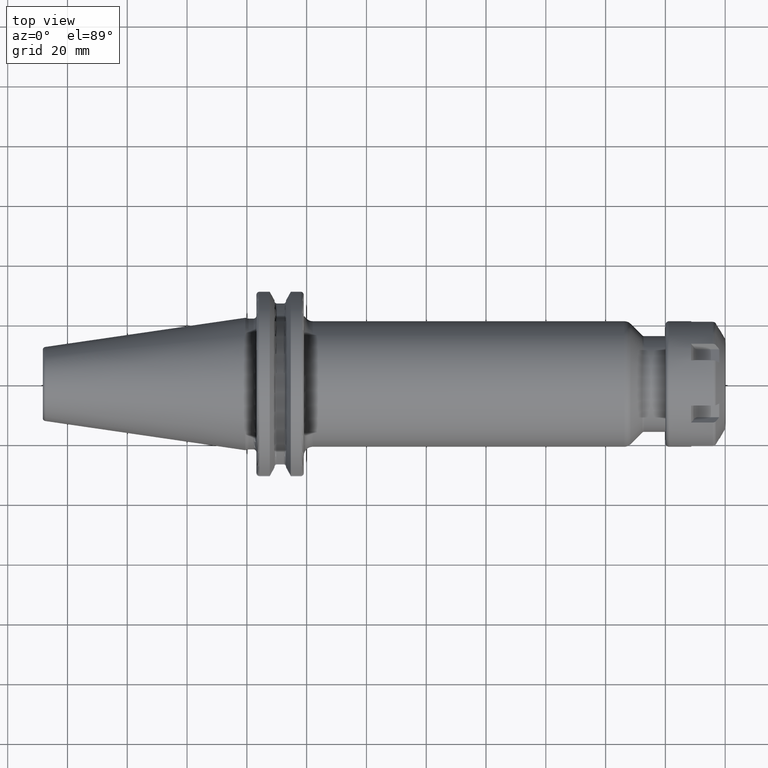
[diagram: clean part render]
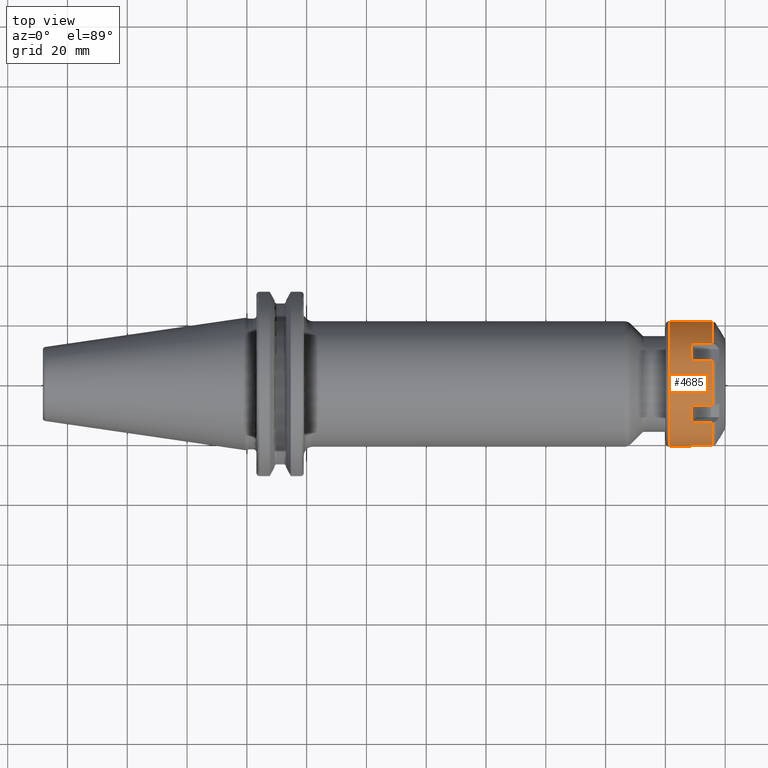
[diagram: same view with one face highlighted and labeled with its STEP entity id]
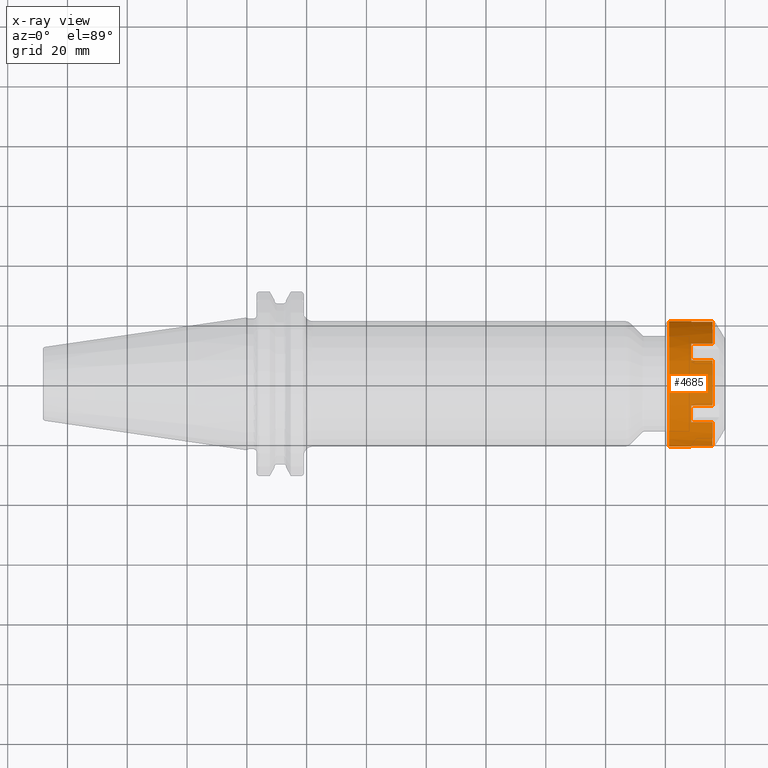
[diagram: x-ray of the same camera — body ghosted, the highlighted face saturated]
A machine part, top view. The second image highlights one B-rep face of the part: STEP entity #4685.
The next image is the same camera in x-ray: the body ghosted, the highlighted face saturated — about 0% of this face is hidden behind the body in this view.
In plain terms, the highlighted cylindrical surface (partial cylindrical patch) has radius 21 mm, axis along (1, 0, 0).
Its self-contained STEP definition (entity closure, byte-faithful):
#3319=CARTESIAN_POINT('',(1.581421054838E1,1.317189611779E1,1.635546247167E1));
#3336=CARTESIAN_POINT('',(1.581421054838E1,2.075019405E1,3.229465418179E0));
#3338=CARTESIAN_POINT('',(1.581421054838E1,-7.578297932215E0,1.958492788985E1));
#3358=CARTESIAN_POINT('',(1.581421054838E1,7.578297932215E0,1.958492788985E1));
#3360=CARTESIAN_POINT('',(1.581421054838E1,-2.075019405E1,3.229465418179E0));
#3380=CARTESIAN_POINT('',(1.581421054838E1,-1.317189611779E1,1.635546247167E1));
#3453=DIRECTION('',(9.999999999998E-1,-6.709444935676E-7,-9.098410445458E-8));
#3454=VECTOR('',#3453,7.214212575504E0);
#3455=CARTESIAN_POINT('',(8.599997972873E0,1.317190095812E1,1.635546312805E1));
#3456=LINE('',#3455,#3454);
#3469=DIRECTION('',(-1.E0,0.E0,0.E0));
#3470=VECTOR('',#3469,7.214210815093E0);
#3471=CARTESIAN_POINT('',(1.581421054838E1,7.578297932215E0,1.958492788985E1));
#3472=LINE('',#3471,#3470);
#3578=DIRECTION('',(1.E0,0.E0,0.E0));
#3579=VECTOR('',#3578,7.214210548375E0);
#3580=CARTESIAN_POINT('',(8.6E0,-2.075019405E1,3.229465418179E0));
#3581=LINE('',#3580,#3579);
#3619=DIRECTION('',(-1.E0,9.411549393136E-12,6.000804948597E-11));
#3620=VECTOR('',#3619,7.350000000040E0);
#3621=CARTESIAN_POINT('',(8.600000000040E0,2.099999999993E1,
-4.377820052165E-10));
#3622=LINE('',#3621,#3620);
#3628=DIRECTION('',(-1.E0,-9.436200875805E-12,-6.000654573246E-11));
#3629=VECTOR('',#3628,7.350000000040E0);
#3630=CARTESIAN_POINT('',(8.600000000040E0,-2.099999999993E1,
4.377679851591E-10));
#3631=LINE('',#3630,#3629);
#3699=DIRECTION('',(-1.E0,1.969841969528E-14,0.E0));
#3700=VECTOR('',#3699,7.214210548375E0);
#3701=CARTESIAN_POINT('',(1.581421054838E1,2.075019405E1,3.229465418179E0));
#3702=LINE('',#3701,#3700);
#3714=CARTESIAN_POINT('',(8.6E0,0.E0,0.E0));
#3715=DIRECTION('',(-1.E0,0.E0,0.E0));
#3716=DIRECTION('',(0.E0,-1.E0,0.E0));
#3717=AXIS2_PLACEMENT_3D('',#3714,#3715,#3716);
#3719=CARTESIAN_POINT('',(1.25E0,0.E0,0.E0));
#3720=DIRECTION('',(-1.E0,0.E0,0.E0));
#3721=DIRECTION('',(0.E0,-1.E0,0.E0));
#3722=AXIS2_PLACEMENT_3D('',#3719,#3720,#3721);
#3724=CARTESIAN_POINT('',(8.6E0,0.E0,0.E0));
#3725=DIRECTION('',(-1.E0,0.E0,0.E0));
#3726=DIRECTION('',(0.E0,9.881044785716E-1,1.537840675323E-1));
#3727=AXIS2_PLACEMENT_3D('',#3724,#3725,#3726);
#3729=CARTESIAN_POINT('',(1.581421054838E1,-1.792614389339E-14,0.E0));
#3730=DIRECTION('',(-1.E0,0.E0,0.E0));
#3731=DIRECTION('',(0.E0,6.272331484661E-1,7.788315462700E-1));
#3732=AXIS2_PLACEMENT_3D('',#3729,#3730,#3731);
#3734=CARTESIAN_POINT('',(1.581421054838E1,-1.792614389339E-14,0.E0));
#3735=DIRECTION('',(-1.E0,0.E0,0.E0));
#3736=DIRECTION('',(0.E0,-3.608713301055E-1,9.326156138023E-1));
#3737=AXIS2_PLACEMENT_3D('',#3734,#3735,#3736);
#3739=CARTESIAN_POINT('',(1.581421054838E1,-1.792614389339E-14,0.E0));
#3740=DIRECTION('',(-1.E0,0.E0,0.E0));
#3741=DIRECTION('',(0.E0,-9.881044785716E-1,1.537840675323E-1));
#3742=AXIS2_PLACEMENT_3D('',#3739,#3740,#3741);
#3818=CARTESIAN_POINT('',(8.600000222181E0,7.035000558750E-6,
1.879731957107E-6));
#3819=DIRECTION('',(-1.E0,0.E0,0.E0));
#3820=DIRECTION('',(0.E0,3.608710688571E-1,9.326157148911E-1));
#3821=AXIS2_PLACEMENT_3D('',#3818,#3819,#3820);
#3837=DIRECTION('',(9.999999999979E-1,-1.452794314702E-6,1.445246590338E-6));
#3838=VECTOR('',#3837,7.214202484701E0);
#3839=CARTESIAN_POINT('',(8.600008063689E0,-7.578287451463E0,1.958491746355E1));
#3840=LINE('',#3839,#3838);
#3853=DIRECTION('',(-1.E0,0.E0,0.E0));
#3854=VECTOR('',#3853,7.214210890546E0);
#3855=CARTESIAN_POINT('',(1.581421054838E1,-1.317189611779E1,1.635546247167E1));
#3856=LINE('',#3855,#3854);
#3889=CARTESIAN_POINT('',(8.600000318507E0,1.804967964893E-5,
-1.352930521446E-5));
#3890=DIRECTION('',(-1.E0,0.E0,0.E0));
#3891=DIRECTION('',(0.E0,-6.272333551021E-1,7.788313798553E-1));
#3892=AXIS2_PLACEMENT_3D('',#3889,#3890,#3891);
#3976=CARTESIAN_POINT('',(1.25E0,2.1E1,0.E0));
#3977=CARTESIAN_POINT('',(1.25E0,-2.1E1,0.E0));
#3978=VERTEX_POINT('',#3976);
#3979=VERTEX_POINT('',#3977);
#3985=VERTEX_POINT('',#3336);
#3987=CARTESIAN_POINT('',(8.6E0,2.1E1,0.E0));
#3989=VERTEX_POINT('',#3987);
#3991=CARTESIAN_POINT('',(8.6E0,2.075019405E1,3.229465418179E0));
#3992=VERTEX_POINT('',#3991);
#4001=VERTEX_POINT('',#3319);
#4002=VERTEX_POINT('',#3358);
#4003=CARTESIAN_POINT('',(8.600000222181E0,7.578297626635E0,1.958492710012E1));
#4004=CARTESIAN_POINT('',(8.600000222181E0,1.317189658068E1,1.635546304645E1));
#4005=VERTEX_POINT('',#4003);
#4006=VERTEX_POINT('',#4004);
#4015=VERTEX_POINT('',#3338);
#4016=VERTEX_POINT('',#3380);
#4017=CARTESIAN_POINT('',(8.600000318507E0,-1.317189540004E1,1.635546158045E1));
#4018=CARTESIAN_POINT('',(8.600000318507E0,-7.578298503418E0,1.958492936603E1));
#4019=VERTEX_POINT('',#4017);
#4020=VERTEX_POINT('',#4018);
#4030=VERTEX_POINT('',#3360);
#4032=CARTESIAN_POINT('',(8.6E0,-2.1E1,0.E0));
#4033=CARTESIAN_POINT('',(8.6E0,-2.075019405E1,3.229465418179E0));
#4034=VERTEX_POINT('',#4032);
#4035=VERTEX_POINT('',#4033);
#4655=CARTESIAN_POINT('',(-1.E0,0.E0,0.E0));
#4656=DIRECTION('',(1.E0,0.E0,0.E0));
#4657=DIRECTION('',(0.E0,-1.E0,0.E0));
#4658=AXIS2_PLACEMENT_3D('',#4655,#4656,#4657);
#4659=CYLINDRICAL_SURFACE('',#4658,2.1E1);
#4661=ORIENTED_EDGE('',*,*,#4660,.F.);
#4662=ORIENTED_EDGE('',*,*,#4544,.T.);
#4664=ORIENTED_EDGE('',*,*,#4663,.T.);
#4665=ORIENTED_EDGE('',*,*,#4540,.F.);
#4667=ORIENTED_EDGE('',*,*,#4666,.F.);
#4668=ORIENTED_EDGE('',*,*,#4635,.F.);
#4669=ORIENTED_EDGE('',*,*,#4232,.F.);
#4670=ORIENTED_EDGE('',*,*,#4325,.F.);
#4672=ORIENTED_EDGE('',*,*,#4671,.F.);
#4673=ORIENTED_EDGE('',*,*,#4393,.F.);
#4674=ORIENTED_EDGE('',*,*,#4248,.F.);
#4676=ORIENTED_EDGE('',*,*,#4675,.F.);
#4678=ORIENTED_EDGE('',*,*,#4677,.F.);
#4680=ORIENTED_EDGE('',*,*,#4679,.F.);
#4681=ORIENTED_EDGE('',*,*,#4264,.F.);
#4682=ORIENTED_EDGE('',*,*,#4453,.F.);
#4683=EDGE_LOOP('',(#4661,#4662,#4664,#4665,#4667,#4668,#4669,#4670,#4672,#4673,
#4674,#4676,#4678,#4680,#4681,#4682));
#4684=FACE_OUTER_BOUND('',#4683,.F.);
#4685=ADVANCED_FACE('',(#4684),#4659,.T.);
#3718=CIRCLE('',#3717,2.1E1);
#3723=CIRCLE('',#3722,2.1E1);
#3728=CIRCLE('',#3727,2.1E1);
#3733=CIRCLE('',#3732,2.1E1);
#3738=CIRCLE('',#3737,2.1E1);
#3743=CIRCLE('',#3742,2.1E1);
#3822=CIRCLE('',#3821,2.099999486142E1);
#3893=CIRCLE('',#3892,2.100002071410E1);
#4232=EDGE_CURVE('',#4001,#3985,#3733,.T.);
#4248=EDGE_CURVE('',#4015,#4002,#3738,.T.);
#4264=EDGE_CURVE('',#4030,#4016,#3743,.T.);
#4325=EDGE_CURVE('',#4006,#4001,#3456,.T.);
#4393=EDGE_CURVE('',#4002,#4005,#3472,.T.);
#4453=EDGE_CURVE('',#4035,#4030,#3581,.T.);
#4540=EDGE_CURVE('',#3989,#3978,#3622,.T.);
#4544=EDGE_CURVE('',#4034,#3979,#3631,.T.);
#4635=EDGE_CURVE('',#3985,#3992,#3702,.T.);
#4660=EDGE_CURVE('',#4034,#4035,#3718,.T.);
#4663=EDGE_CURVE('',#3979,#3978,#3723,.T.);
#4666=EDGE_CURVE('',#3992,#3989,#3728,.T.);
#4671=EDGE_CURVE('',#4005,#4006,#3822,.T.);
#4675=EDGE_CURVE('',#4020,#4015,#3840,.T.);
#4677=EDGE_CURVE('',#4019,#4020,#3893,.T.);
#4679=EDGE_CURVE('',#4016,#4019,#3856,.T.);